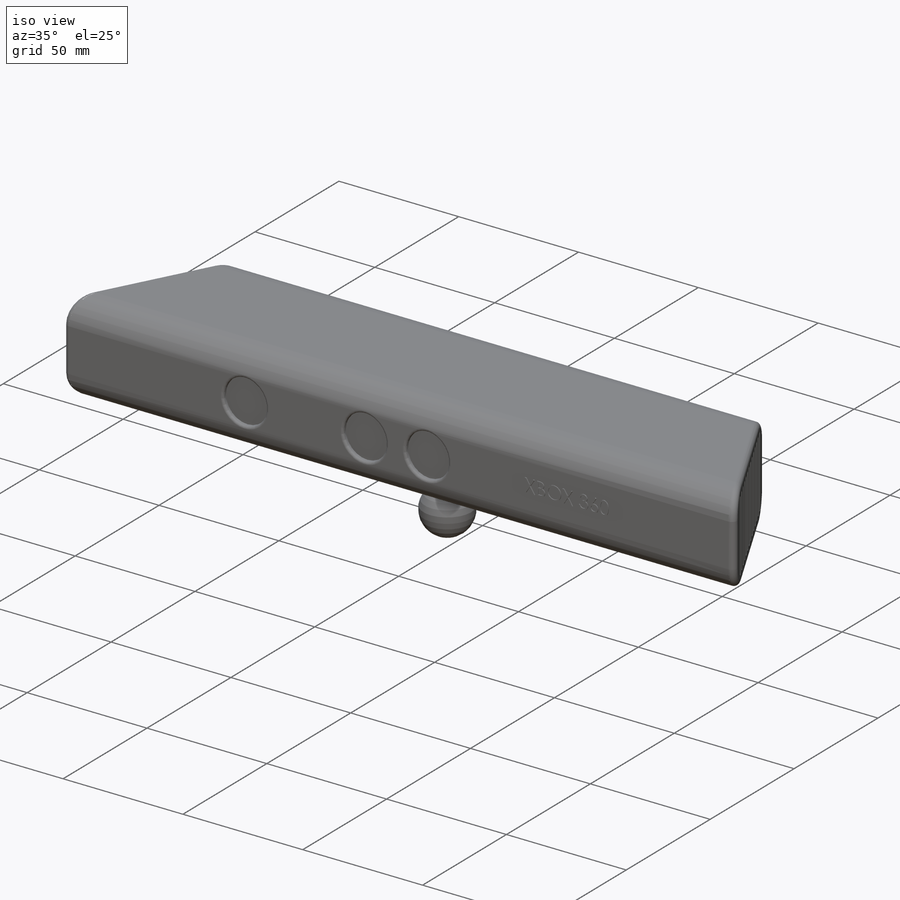
[diagram: iso view]
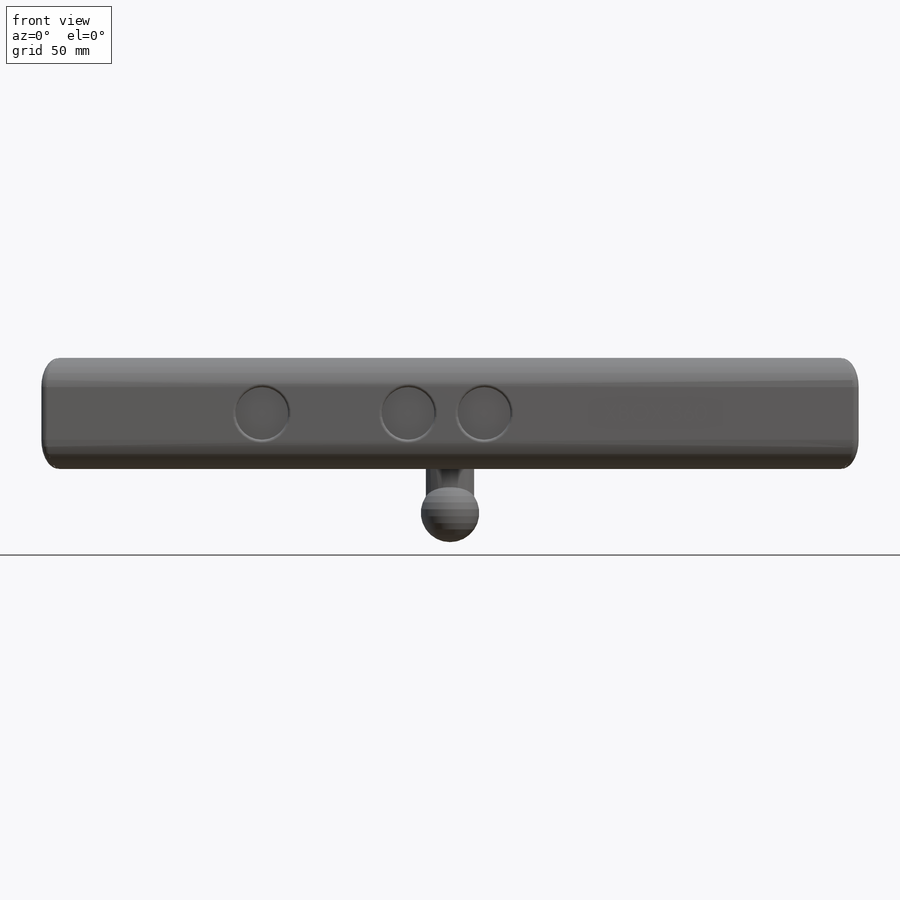
[diagram: front view]
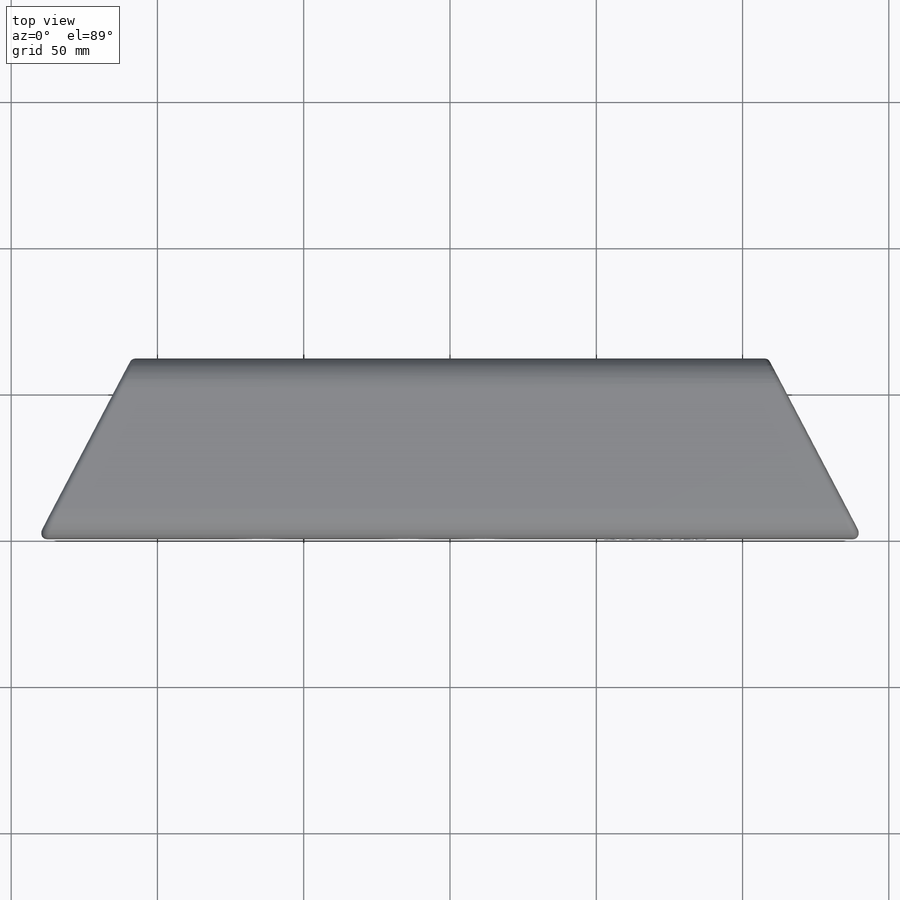
[diagram: top view]
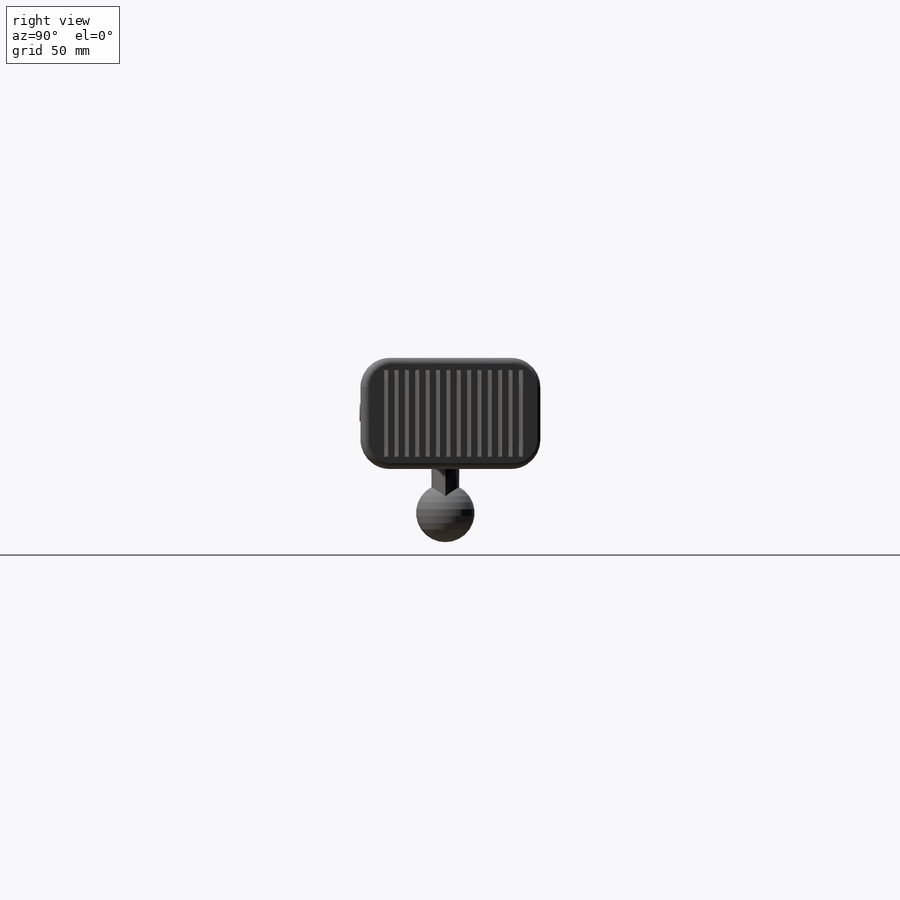
[diagram: right view]
SOLIDWORKS PART (.sldprt)
format: sldprt  version: not decoded by parser v0  size: 710,656 bytes
history: native  units: mm
features: sketch x7, plane x4, cut_extrude x3, fillet x3, extrude x2, material x1, pattern_linear x1, mirror x1, revolve x1 (+8 scaffold rows collapsed)
feature tree (31):
  scaffold x8  (default folders/planes/origin — collapsed)
  material  "Material <not specified>"
  plane  "Piano frontale"
  plane  "Piano superiore"
  plane  "Piano destro"
  sketch  "Sketch1"  dims[D1=38.0mm D2=282.0mm]
  extrude  "Boss-Extrude1"  Depth=61.5mm
  sketch  "Sketch2"  dims[D1=217.5mm]
  cut_extrude  "Cut-Extrude1"  [1 undecoded]
  fillet  "Fillet1"  Radius=10mm
  fillet  "Fillet2"  Radius=2mm
  sketch  "Sketch3"
  cut_extrude  "Cut-Extrude2"  Depth=5mm
  pattern_linear  "LPattern1"  Count1=14 Count2=1 Spacing1=4mm Spacing2=10mm
  mirror  "Mirror1"
  sketch  "XBOX 360"  dims[c1.D1=35.0mm c1.D2=6.5mm c1.D3=87.0mm c1.D4=15.0mm c2.D1=0.3mm]
  sketch  "Sketch6"  dims[c1.D3=~13.74181mm c1.D1=25.5mm c1.D2=36.0mm c2.D1=29.0mm c2.D2=16.5mm c2.D3=4.75mm]
  extrude  "Boss-Extrude2"  Depth=10mm
  plane  "Plane1"
  sketch  "Sketch7"  dims[D1=20.0mm D2=5.0mm]
  revolve  "Revolve1"  Angle=360deg
  sketch  "Sketch8"  dims[D2=18.0mm D1=128.0mm D3=26.0mm D4=50.0mm]
  cut_extrude  "Cut-Extrude3"  Depth=1.8mm
  fillet  "Fillet3"  Radius=1mm
decode coverage: 15 of 18 modeling features carry decoded parameters
note: ~ marks probable driven/reference dimensions
note: 1 parameter value undecoded
note: suppression state not decoded; provenance and decode notes live in map.json
